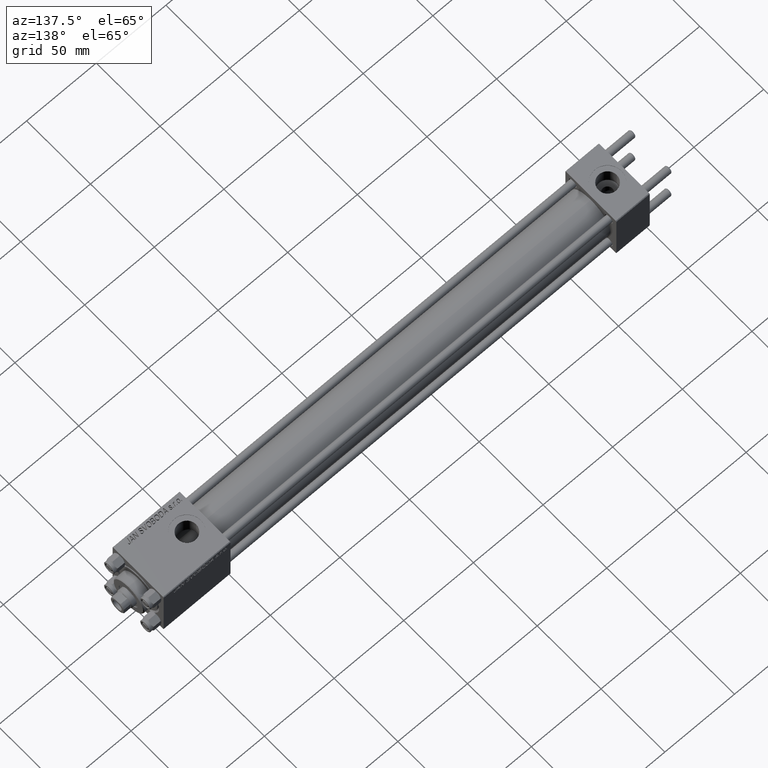
[diagram: clean part render]
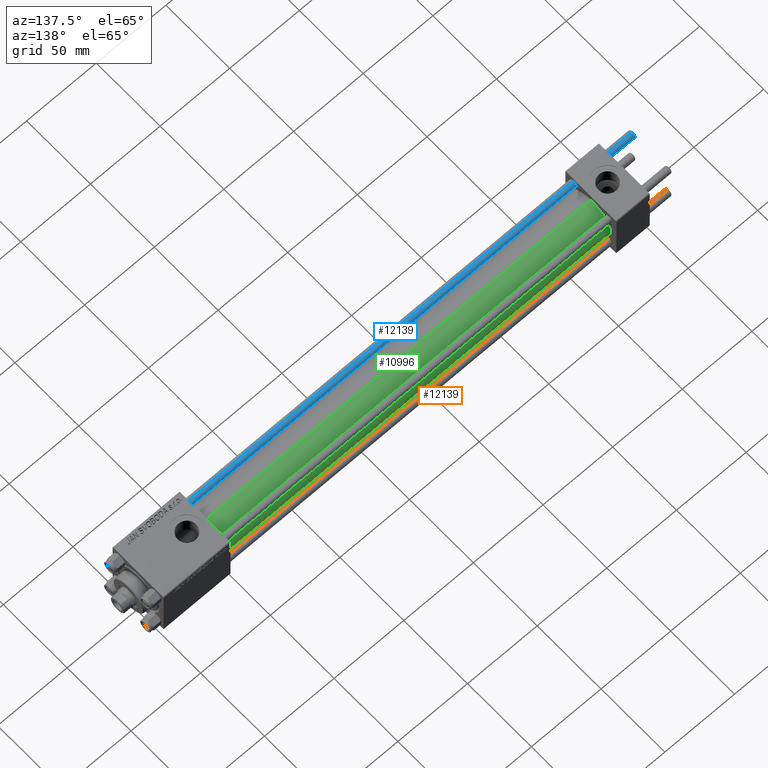
[diagram: same view with three faces highlighted in distinct colors, each labeled with its STEP entity id]
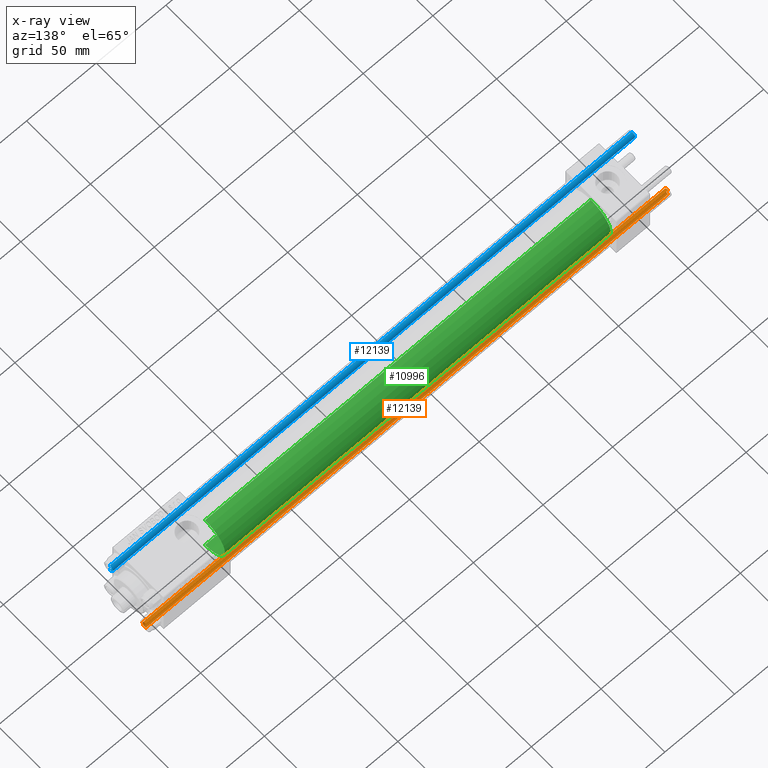
[diagram: x-ray of the same camera — body ghosted, the three highlighted faces saturated]
A machine part, auxiliary view with three faces highlighted in distinct colors.
The next image is the same camera in x-ray (body ghosted, the three faces saturated) — at least one of them is partly hidden behind the body in this view.
Their STEP definitions:

[orange] entity #12139 — the highlighted cylindrical surface (edge-blend (fillet) strip) has radius 2.5 mm, axis along (1, 0, -0).
#500 = DIRECTION ( 'NONE',  ( -0.000000000000000000, -0.000000000000000000, 1.000000000000000000 ) ) ;
#709 = VERTEX_POINT ( 'NONE', #37376 ) ;
#1172 = DIRECTION ( 'NONE',  ( 0.000000000000000000, 0.000000000000000000, -1.000000000000000000 ) ) ;
#1254 = EDGE_CURVE ( 'NONE', #9641, #709, #47311, .T. ) ;
#1400 = DIRECTION ( 'NONE',  ( -1.000000000000000000, 0.000000000000000000, 0.000000000000000000 ) ) ;
#2215 = CARTESIAN_POINT ( 'NONE',  ( -2.500000000000000000, 0.000000000000000000, 376.0000000000000000 ) ) ;
#3331 = DIRECTION ( 'NONE',  ( -0.000000000000000000, -0.000000000000000000, -1.000000000000000000 ) ) ;
#3616 = VERTEX_POINT ( 'NONE', #47192 ) ;
#3639 = VECTOR ( 'NONE', #3331, 1000.000000000000000 ) ;
#8939 = FACE_OUTER_BOUND ( 'NONE', #49049, .T. ) ;
#9477 = AXIS2_PLACEMENT_3D ( 'NONE', #28344, #1172, #16777 ) ;
#9641 = VERTEX_POINT ( 'NONE', #41814 ) ;
#10611 = LINE ( 'NONE', #33545, #3639 ) ;
#12009 = CARTESIAN_POINT ( 'NONE',  ( -2.500000000000000000, 0.000000000000000000, 0.4999999999999449329 ) ) ;
#12139 = ADVANCED_FACE ( 'NONE', ( #8939 ), #39178, .T. ) ;
#14586 = VERTEX_POINT ( 'NONE', #12009 ) ;
#16115 = DIRECTION ( 'NONE',  ( 1.000000000000000000, 0.000000000000000000, 0.000000000000000000 ) ) ;
#16217 = ORIENTED_EDGE ( 'NONE', *, *, #36349, .T. ) ;
#16777 = DIRECTION ( 'NONE',  ( 1.000000000000000000, 0.000000000000000000, 0.000000000000000000 ) ) ;
#21361 = LINE ( 'NONE', #2215, #33312 ) ;
#25825 = EDGE_CURVE ( 'NONE', #9641, #3616, #10611, .T. ) ;
#27584 = DIRECTION ( 'NONE',  ( -0.000000000000000000, -0.000000000000000000, -1.000000000000000000 ) ) ;
#28344 = CARTESIAN_POINT ( 'NONE',  ( 0.000000000000000000, 0.000000000000000000, 375.5000000000000568 ) ) ;
#30540 = ORIENTED_EDGE ( 'NONE', *, *, #25825, .F. ) ;
#32189 = ORIENTED_EDGE ( 'NONE', *, *, #1254, .T. ) ;
#33312 = VECTOR ( 'NONE', #48040, 1000.000000000000000 ) ;
#33545 = CARTESIAN_POINT ( 'NONE',  ( 2.500000000000000000, 3.061616997868383141E-16, 376.0000000000000000 ) ) ;
#36349 = EDGE_CURVE ( 'NONE', #709, #14586, #21361, .T. ) ;
#37376 = CARTESIAN_POINT ( 'NONE',  ( -2.500000000000000000, 0.000000000000000000, 375.5000000000000568 ) ) ;
#38353 = CIRCLE ( 'NONE', #44798, 2.500000000000000000 ) ;
#39178 = CYLINDRICAL_SURFACE ( 'NONE', #49188, 2.500000000000000000 ) ;
#41814 = CARTESIAN_POINT ( 'NONE',  ( 2.500000000000000000, 3.061616997868383141E-16, 375.5000000000000568 ) ) ;
#43675 = CARTESIAN_POINT ( 'NONE',  ( 0.000000000000000000, 0.000000000000000000, 376.0000000000000000 ) ) ;
#44798 = AXIS2_PLACEMENT_3D ( 'NONE', #46573, #500, #16115 ) ;
#46412 = EDGE_CURVE ( 'NONE', #14586, #3616, #38353, .T. ) ;
#46573 = CARTESIAN_POINT ( 'NONE',  ( 0.000000000000000000, 0.000000000000000000, 0.4999999999999449329 ) ) ;
#47192 = CARTESIAN_POINT ( 'NONE',  ( 2.500000000000000000, 3.061616997868383141E-16, 0.4999999999999449329 ) ) ;
#47311 = CIRCLE ( 'NONE', #9477, 2.500000000000000000 ) ;
#47549 = ORIENTED_EDGE ( 'NONE', *, *, #46412, .T. ) ;
#48040 = DIRECTION ( 'NONE',  ( -0.000000000000000000, -0.000000000000000000, -1.000000000000000000 ) ) ;
#49049 = EDGE_LOOP ( 'NONE', ( #30540, #32189, #16217, #47549 ) ) ;
#49188 = AXIS2_PLACEMENT_3D ( 'NONE', #43675, #27584, #1400 ) ;

[blue] entity #12139 — the highlighted cylindrical surface (edge-blend (fillet) strip) has radius 2.5 mm, axis along (1, -0, 0).
#500 = DIRECTION ( 'NONE',  ( -0.000000000000000000, -0.000000000000000000, 1.000000000000000000 ) ) ;
#709 = VERTEX_POINT ( 'NONE', #37376 ) ;
#1172 = DIRECTION ( 'NONE',  ( 0.000000000000000000, 0.000000000000000000, -1.000000000000000000 ) ) ;
#1254 = EDGE_CURVE ( 'NONE', #9641, #709, #47311, .T. ) ;
#1400 = DIRECTION ( 'NONE',  ( -1.000000000000000000, 0.000000000000000000, 0.000000000000000000 ) ) ;
#2215 = CARTESIAN_POINT ( 'NONE',  ( -2.500000000000000000, 0.000000000000000000, 376.0000000000000000 ) ) ;
#3331 = DIRECTION ( 'NONE',  ( -0.000000000000000000, -0.000000000000000000, -1.000000000000000000 ) ) ;
#3616 = VERTEX_POINT ( 'NONE', #47192 ) ;
#3639 = VECTOR ( 'NONE', #3331, 1000.000000000000000 ) ;
#8939 = FACE_OUTER_BOUND ( 'NONE', #49049, .T. ) ;
#9477 = AXIS2_PLACEMENT_3D ( 'NONE', #28344, #1172, #16777 ) ;
#9641 = VERTEX_POINT ( 'NONE', #41814 ) ;
#10611 = LINE ( 'NONE', #33545, #3639 ) ;
#12009 = CARTESIAN_POINT ( 'NONE',  ( -2.500000000000000000, 0.000000000000000000, 0.4999999999999449329 ) ) ;
#12139 = ADVANCED_FACE ( 'NONE', ( #8939 ), #39178, .T. ) ;
#14586 = VERTEX_POINT ( 'NONE', #12009 ) ;
#16115 = DIRECTION ( 'NONE',  ( 1.000000000000000000, 0.000000000000000000, 0.000000000000000000 ) ) ;
#16217 = ORIENTED_EDGE ( 'NONE', *, *, #36349, .T. ) ;
#16777 = DIRECTION ( 'NONE',  ( 1.000000000000000000, 0.000000000000000000, 0.000000000000000000 ) ) ;
#21361 = LINE ( 'NONE', #2215, #33312 ) ;
#25825 = EDGE_CURVE ( 'NONE', #9641, #3616, #10611, .T. ) ;
#27584 = DIRECTION ( 'NONE',  ( -0.000000000000000000, -0.000000000000000000, -1.000000000000000000 ) ) ;
#28344 = CARTESIAN_POINT ( 'NONE',  ( 0.000000000000000000, 0.000000000000000000, 375.5000000000000568 ) ) ;
#30540 = ORIENTED_EDGE ( 'NONE', *, *, #25825, .F. ) ;
#32189 = ORIENTED_EDGE ( 'NONE', *, *, #1254, .T. ) ;
#33312 = VECTOR ( 'NONE', #48040, 1000.000000000000000 ) ;
#33545 = CARTESIAN_POINT ( 'NONE',  ( 2.500000000000000000, 3.061616997868383141E-16, 376.0000000000000000 ) ) ;
#36349 = EDGE_CURVE ( 'NONE', #709, #14586, #21361, .T. ) ;
#37376 = CARTESIAN_POINT ( 'NONE',  ( -2.500000000000000000, 0.000000000000000000, 375.5000000000000568 ) ) ;
#38353 = CIRCLE ( 'NONE', #44798, 2.500000000000000000 ) ;
#39178 = CYLINDRICAL_SURFACE ( 'NONE', #49188, 2.500000000000000000 ) ;
#41814 = CARTESIAN_POINT ( 'NONE',  ( 2.500000000000000000, 3.061616997868383141E-16, 375.5000000000000568 ) ) ;
#43675 = CARTESIAN_POINT ( 'NONE',  ( 0.000000000000000000, 0.000000000000000000, 376.0000000000000000 ) ) ;
#44798 = AXIS2_PLACEMENT_3D ( 'NONE', #46573, #500, #16115 ) ;
#46412 = EDGE_CURVE ( 'NONE', #14586, #3616, #38353, .T. ) ;
#46573 = CARTESIAN_POINT ( 'NONE',  ( 0.000000000000000000, 0.000000000000000000, 0.4999999999999449329 ) ) ;
#47192 = CARTESIAN_POINT ( 'NONE',  ( 2.500000000000000000, 3.061616997868383141E-16, 0.4999999999999449329 ) ) ;
#47311 = CIRCLE ( 'NONE', #9477, 2.500000000000000000 ) ;
#47549 = ORIENTED_EDGE ( 'NONE', *, *, #46412, .T. ) ;
#48040 = DIRECTION ( 'NONE',  ( -0.000000000000000000, -0.000000000000000000, -1.000000000000000000 ) ) ;
#49049 = EDGE_LOOP ( 'NONE', ( #30540, #32189, #16217, #47549 ) ) ;
#49188 = AXIS2_PLACEMENT_3D ( 'NONE', #43675, #27584, #1400 ) ;

[green] entity #10996 — the highlighted cylindrical surface (edge-blend (fillet) strip) has radius 15.5 mm, axis along (-1, -0, -0).
#2635 = ORIENTED_EDGE ( 'NONE', *, *, #37827, .T. ) ;
#5702 = FACE_OUTER_BOUND ( 'NONE', #32214, .T. ) ;
#6864 = VECTOR ( 'NONE', #21839, 1000.000000000000000 ) ;
#6982 = DIRECTION ( 'NONE',  ( 0.000000000000000000, 0.000000000000000000, 1.000000000000000000 ) ) ;
#7448 = VERTEX_POINT ( 'NONE', #30199 ) ;
#9075 = DIRECTION ( 'NONE',  ( 0.000000000000000000, 0.000000000000000000, -1.000000000000000000 ) ) ;
#9583 = ORIENTED_EDGE ( 'NONE', *, *, #44184, .F. ) ;
#9955 = VERTEX_POINT ( 'NONE', #16244 ) ;
#10996 = ADVANCED_FACE ( 'NONE', ( #5702 ), #29350, .T. ) ;
#11600 = VERTEX_POINT ( 'NONE', #12343 ) ;
#12343 = CARTESIAN_POINT ( 'NONE',  ( 24.00000000000002132, 0.000000000000000000, 15.50000000000000000 ) ) ;
#12352 = LINE ( 'NONE', #16889, #32445 ) ;
#14246 = DIRECTION ( 'NONE',  ( -1.000000000000000000, -0.000000000000000000, -0.000000000000000000 ) ) ;
#15461 = ORIENTED_EDGE ( 'NONE', *, *, #18523, .F. ) ;
#15793 = AXIS2_PLACEMENT_3D ( 'NONE', #20698, #16657, #9075 ) ;
#16244 = CARTESIAN_POINT ( 'NONE',  ( 301.0000000000000568, 1.898202538678397557E-15, -15.50000000000000000 ) ) ;
#16657 = DIRECTION ( 'NONE',  ( 1.000000000000000000, 0.000000000000000000, 0.000000000000000000 ) ) ;
#16889 = CARTESIAN_POINT ( 'NONE',  ( 301.0000000000000568, 0.000000000000000000, 15.50000000000000000 ) ) ;
#18523 = EDGE_CURVE ( 'NONE', #7448, #11600, #12352, .T. ) ;
#18939 = ORIENTED_EDGE ( 'NONE', *, *, #36483, .T. ) ;
#20698 = CARTESIAN_POINT ( 'NONE',  ( 301.0000000000000568, 0.000000000000000000, 0.000000000000000000 ) ) ;
#21574 = DIRECTION ( 'NONE',  ( 0.000000000000000000, 0.000000000000000000, 1.000000000000000000 ) ) ;
#21839 = DIRECTION ( 'NONE',  ( -1.000000000000000000, -0.000000000000000000, -0.000000000000000000 ) ) ;
#23090 = VERTEX_POINT ( 'NONE', #31926 ) ;
#27146 = CIRCLE ( 'NONE', #15793, 15.50000000000000000 ) ;
#29350 = CYLINDRICAL_SURFACE ( 'NONE', #33940, 15.50000000000000000 ) ;
#29622 = LINE ( 'NONE', #49522, #6864 ) ;
#30199 = CARTESIAN_POINT ( 'NONE',  ( 301.0000000000000568, 0.000000000000000000, 15.50000000000000000 ) ) ;
#31926 = CARTESIAN_POINT ( 'NONE',  ( 24.00000000000002132, 1.898202538678397557E-15, -15.50000000000000000 ) ) ;
#32214 = EDGE_LOOP ( 'NONE', ( #9583, #2635, #18939, #15461 ) ) ;
#32445 = VECTOR ( 'NONE', #41269, 1000.000000000000000 ) ;
#32643 = CARTESIAN_POINT ( 'NONE',  ( 301.0000000000000568, 0.000000000000000000, 0.000000000000000000 ) ) ;
#33163 = CARTESIAN_POINT ( 'NONE',  ( 24.00000000000002132, 0.000000000000000000, 0.000000000000000000 ) ) ;
#33672 = DIRECTION ( 'NONE',  ( 1.000000000000000000, 0.000000000000000000, 0.000000000000000000 ) ) ;
#33940 = AXIS2_PLACEMENT_3D ( 'NONE', #32643, #14246, #21574 ) ;
#36483 = EDGE_CURVE ( 'NONE', #23090, #11600, #37343, .T. ) ;
#37343 = CIRCLE ( 'NONE', #43776, 15.50000000000000000 ) ;
#37827 = EDGE_CURVE ( 'NONE', #9955, #23090, #29622, .T. ) ;
#41269 = DIRECTION ( 'NONE',  ( -1.000000000000000000, -0.000000000000000000, -0.000000000000000000 ) ) ;
#43776 = AXIS2_PLACEMENT_3D ( 'NONE', #33163, #33672, #6982 ) ;
#44184 = EDGE_CURVE ( 'NONE', #9955, #7448, #27146, .T. ) ;
#49522 = CARTESIAN_POINT ( 'NONE',  ( 301.0000000000000568, 1.898202538678397557E-15, -15.50000000000000000 ) ) ;